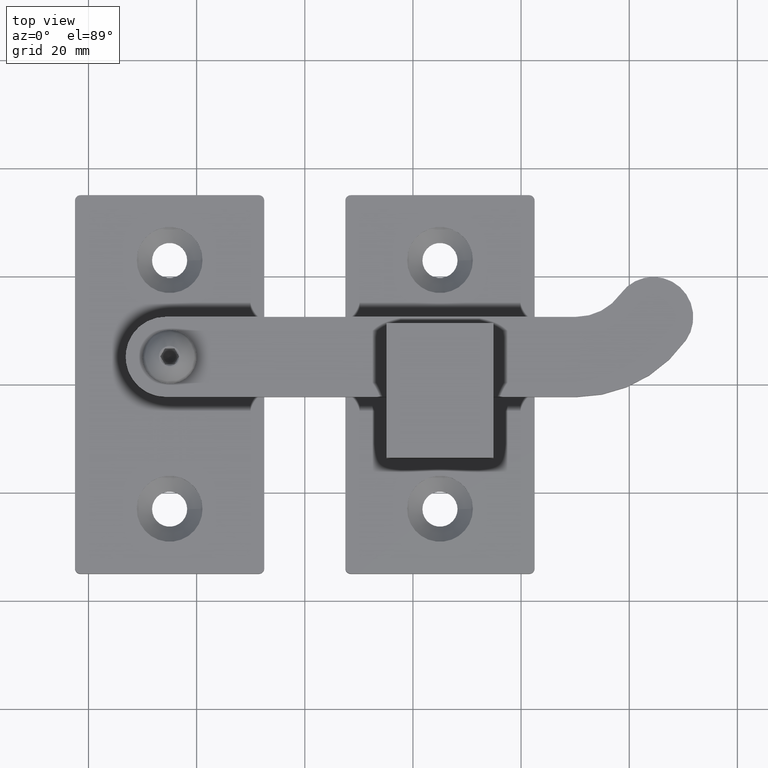
[diagram: clean part render]
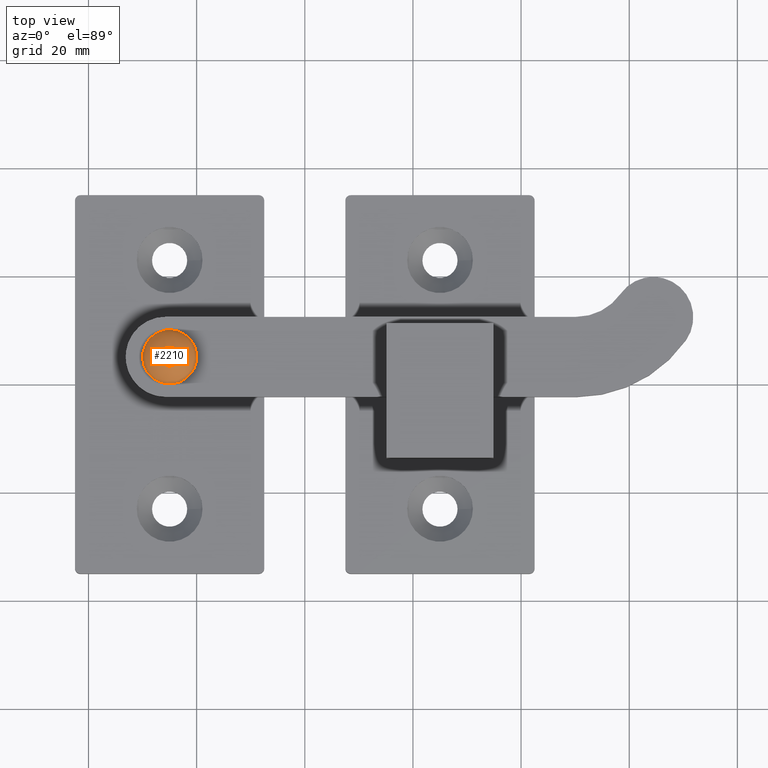
[diagram: same view with one face highlighted and labeled with its STEP entity id]
A machine part, top view. The second image highlights one B-rep face of the part: STEP entity #2210.
In plain terms, the highlighted spherical surface has radius 5.7585 mm.
Its self-contained STEP definition (entity closure, byte-faithful):
#624 = CARTESIAN_POINT ( 'NONE',  ( 0.000000000000000000, -8.673617379884035472E-16, 0.000000000000000000 ) ) ;
#1749 = FACE_OUTER_BOUND ( 'NONE', #16908, .T. ) ;
#2210 = ADVANCED_FACE ( 'NONE', ( #3168, #1749 ), #16636, .T. ) ;
#2752 = VERTEX_POINT ( 'NONE', #6596 ) ;
#3168 = FACE_OUTER_BOUND ( 'NONE', #13000, .T. ) ;
#4077 = DIRECTION ( 'NONE',  ( 0.000000000000000000, 0.000000000000000000, 1.000000000000000000 ) ) ;
#5070 = AXIS2_PLACEMENT_3D ( 'NONE', #13985, #15374, #16937 ) ;
#6170 = AXIS2_PLACEMENT_3D ( 'NONE', #624, #14170, #11176 ) ;
#6326 = CARTESIAN_POINT ( 'NONE',  ( 0.000000000000000000, -8.673617379884035472E-16, -1.982050807568876305 ) ) ;
#6596 = CARTESIAN_POINT ( 'NONE',  ( 0.000000000000000000, 2.550000000000000266, -4.999999999999999112 ) ) ;
#6775 = EDGE_CURVE ( 'NONE', #2752, #2752, #17717, .T. ) ;
#8677 = CARTESIAN_POINT ( 'NONE',  ( 0.000000000000000000, 5.406661685532460737, 0.000000000000000000 ) ) ;
#11176 = DIRECTION ( 'NONE',  ( 0.000000000000000000, 0.000000000000000000, -1.000000000000000000 ) ) ;
#11414 = ORIENTED_EDGE ( 'NONE', *, *, #6775, .T. ) ;
#11496 = VERTEX_POINT ( 'NONE', #6326 ) ;
#12140 = AXIS2_PLACEMENT_3D ( 'NONE', #8677, #4077, #13307 ) ;
#13000 = EDGE_LOOP ( 'NONE', ( #11414 ) ) ;
#13307 = DIRECTION ( 'NONE',  ( 1.000000000000000000, 0.000000000000000000, 0.000000000000000000 ) ) ;
#13985 = CARTESIAN_POINT ( 'NONE',  ( 0.000000000000000000, 2.550000000000000266, 0.000000000000000000 ) ) ;
#14106 = ORIENTED_EDGE ( 'NONE', *, *, #18329, .F. ) ;
#14170 = DIRECTION ( 'NONE',  ( -0.000000000000000000, -1.000000000000000000, -0.000000000000000000 ) ) ;
#15374 = DIRECTION ( 'NONE',  ( -0.000000000000000000, -1.000000000000000000, -0.000000000000000000 ) ) ;
#16636 = SPHERICAL_SURFACE ( 'NONE', #12140, 5.758516821681530118 ) ;
#16908 = EDGE_LOOP ( 'NONE', ( #14106 ) ) ;
#16937 = DIRECTION ( 'NONE',  ( 0.000000000000000000, 0.000000000000000000, -1.000000000000000000 ) ) ;
#17717 = CIRCLE ( 'NONE', #5070, 4.999999999999999112 ) ;
#17884 = CIRCLE ( 'NONE', #6170, 1.982050807568876305 ) ;
#18329 = EDGE_CURVE ( 'NONE', #11496, #11496, #17884, .T. ) ;